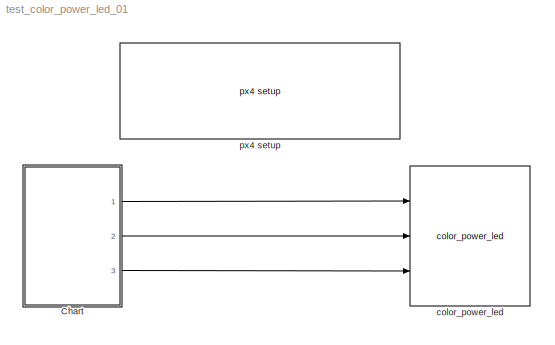
MODEL test_color_power_led_01
KIND model
CONFIG InitFcn = px4_ap1_mdl_callback('check_model');
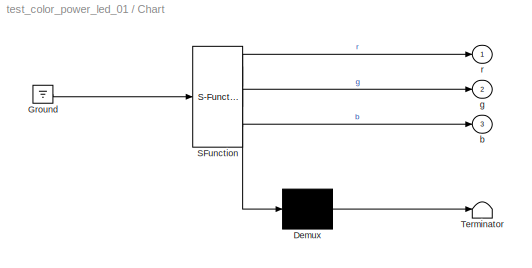
BLOCK [SubSystem] Chart
  ErrorFcn = Stateflow.Translate.translate
  PermitHierarchicalResolution = ExplicitOnly
  Ports = [0, 3]
  RequestExecContextInheritance = off
  SFBlockType = Chart
  SID = 1
  TreatAsAtomicUnit = on
  Variant = off
BLOCK [Demux] Chart/ Demux 
  Outputs = 1
  Ports = [1, 1]
  SID = 1::9
BLOCK [Ground] Chart/ Ground 
  SID = 1::11
BLOCK [S-Function] Chart/ SFunction 
  EnableBusSupport = on
  FunctionName = sf_sfun
  PortCounts = [1 4]
  Ports = [1, 4]
  SFcnIsStateOwnerBlock = off
  SFunctionDeploymentMode = off
  SID = 1::8
  Tag = Stateflow S-Function test_color_power_led_01 1
BLOCK [Terminator] Chart/ Terminator 
  SID = 1::10
BLOCK [Outport] Chart/b
  IconDisplay = Port number
  Port = 3
  SID = 1::7
BLOCK [Outport] Chart/g
  IconDisplay = Port number
  Port = 2
  SID = 1::6
BLOCK [Outport] Chart/r
  IconDisplay = Port number
  SID = 1::5
BLOCK [Reference] color_power_led  REF=px4_ap1_color_power_led_lib/color_power_led  (lib defined in mdl_f26135f629dd)
  Ports = [3]
  SID = 2
  SourceBlock = px4_ap1_color_power_led_lib/color_power_led
  SourceType = PX4_COLOR_POWER_LED
BLOCK [Reference] px4 setup  REF=px4_ap1_px4setup_lib/px4 setup
  Ports = []
  SID = 3
  SampleTimeValue = 0.002
  SourceBlock = px4_ap1_px4setup_lib/px4 setup
  SourceType = PX4_Target_Setup
  cbBuild = on
  cbPort = COM3
  cbUpload = off
  cpuLoad = off
  debugmode = on
LINE Chart/ Demux :1 -> Chart/ Terminator :1
LINE Chart/ Ground :1 -> Chart/ SFunction :1
LINE Chart/ SFunction :1 -> Chart/ Demux :1
LINE Chart/ SFunction :2 -> Chart/r:1
LINE Chart/ SFunction :3 -> Chart/g:1
LINE Chart/ SFunction :4 -> Chart/b:1
LINE Chart:1 -> color_power_led:1
LINE Chart:2 -> color_power_led:2
LINE Chart:3 -> color_power_led:3
CHART Chart states=3 transitions=4
  STATE_LABEL 'RED\\nen:\\nr = 16;\\ng = 0;\\nb = 0;'
  STATE_LABEL 'BLUE\\nen:\\nr = 0;\\ng = 0;\\nb = 16;'
  STATE_LABEL 'GREEN\\nen:\\nr = 0;\\ng = 17;\\nb = 0;'
